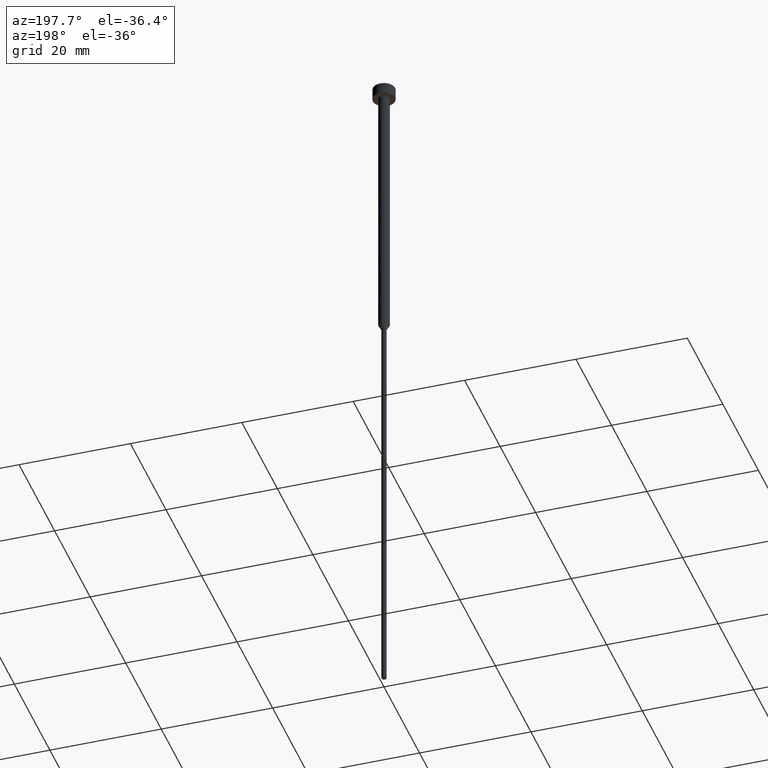
[diagram: clean part render]
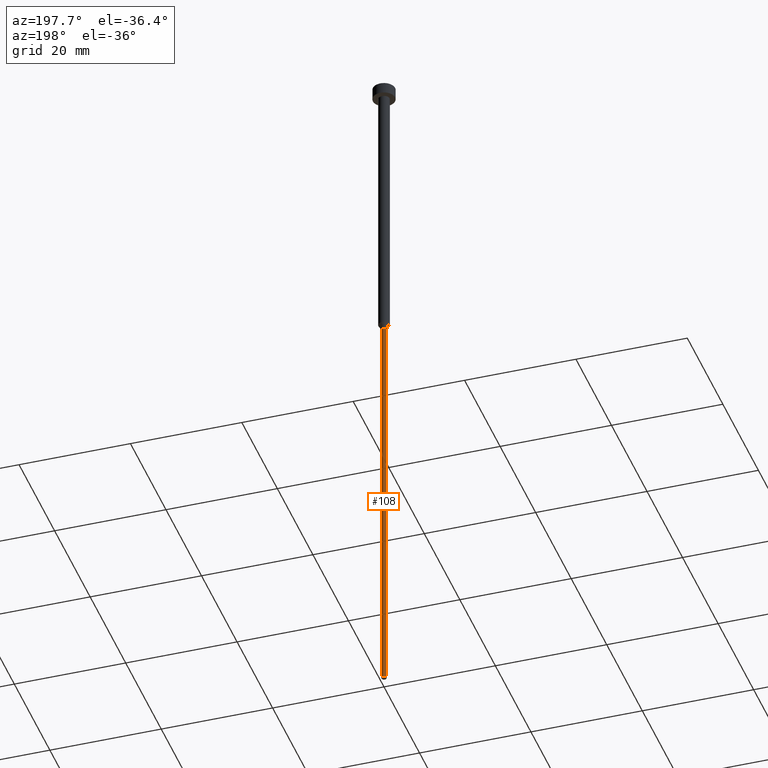
[diagram: same view with one face highlighted and labeled with its STEP entity id]
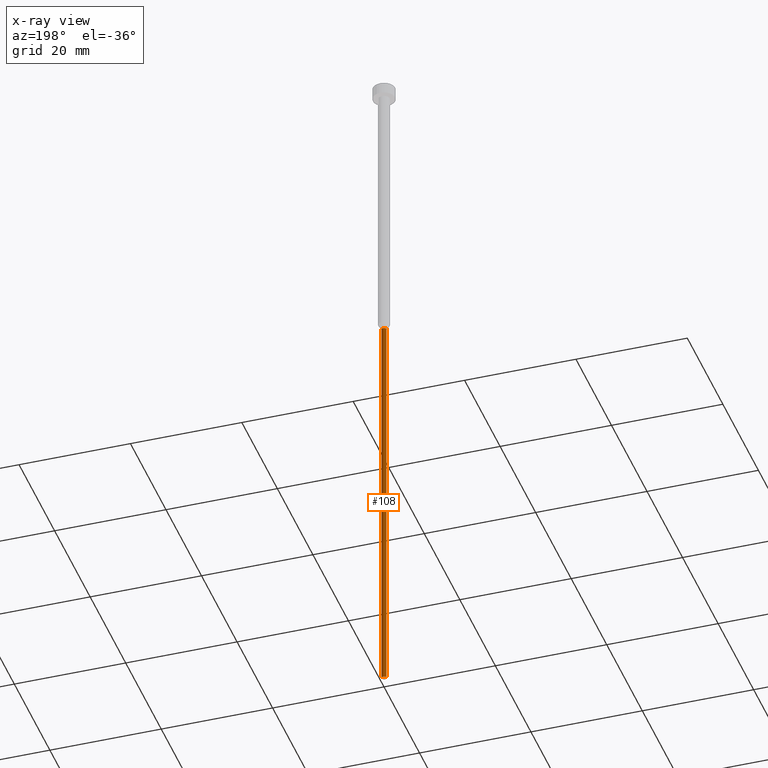
[diagram: x-ray of the same camera — body ghosted, the highlighted face saturated]
A machine part, auxiliary view. The second image highlights one B-rep face of the part: STEP entity #108.
The next image is the same camera in x-ray: the body ghosted, the highlighted face saturated — about 0% of this face is hidden behind the body in this view.
In plain terms, the highlighted cylindrical surface (edge-blend (fillet) strip) has radius 0.45 mm, axis along (-0, -0, 1).
Its self-contained STEP definition (entity closure, byte-faithful):
#9 = DIRECTION ( 'NONE',  ( -0.000000000000000000, -0.000000000000000000, 1.000000000000000000 ) ) ;
#18 = EDGE_CURVE ( 'NONE', #39, #237, #318, .T. ) ;
#39 = VERTEX_POINT ( 'NONE', #233 ) ;
#40 = LINE ( 'NONE', #250, #281 ) ;
#47 = ORIENTED_EDGE ( 'NONE', *, *, #331, .T. ) ;
#51 = VERTEX_POINT ( 'NONE', #128 ) ;
#54 = FACE_OUTER_BOUND ( 'NONE', #78, .T. ) ;
#78 = EDGE_LOOP ( 'NONE', ( #253, #47, #309, #293 ) ) ;
#96 = VERTEX_POINT ( 'NONE', #352 ) ;
#101 = VECTOR ( 'NONE', #197, 1000.000000000000000 ) ;
#107 = DIRECTION ( 'NONE',  ( 1.000000000000000000, 0.000000000000000000, 0.000000000000000000 ) ) ;
#108 = ADVANCED_FACE ( 'NONE', ( #54 ), #191, .T. ) ;
#113 = CARTESIAN_POINT ( 'NONE',  ( 0.000000000000000000, 0.000000000000000000, -50.95262794416288443 ) ) ;
#128 = CARTESIAN_POINT ( 'NONE',  ( 0.4500000000000000111, 0.000000000000000000, -50.95262794416288443 ) ) ;
#136 = CARTESIAN_POINT ( 'NONE',  ( 0.000000000000000000, 0.000000000000000000, -125.0000000000000000 ) ) ;
#143 = DIRECTION ( 'NONE',  ( -0.000000000000000000, -0.000000000000000000, 1.000000000000000000 ) ) ;
#144 = CARTESIAN_POINT ( 'NONE',  ( 0.000000000000000000, 0.000000000000000000, 0.000000000000000000 ) ) ;
#150 = AXIS2_PLACEMENT_3D ( 'NONE', #136, #235, #210 ) ;
#169 = CARTESIAN_POINT ( 'NONE',  ( -0.4500000000000000111, 5.510910596163088939E-17, -125.0000000000000000 ) ) ;
#191 = CYLINDRICAL_SURFACE ( 'NONE', #303, 0.4500000000000000111 ) ;
#197 = DIRECTION ( 'NONE',  ( -0.000000000000000000, -0.000000000000000000, 1.000000000000000000 ) ) ;
#210 = DIRECTION ( 'NONE',  ( 1.000000000000000000, 0.000000000000000000, 0.000000000000000000 ) ) ;
#218 = DIRECTION ( 'NONE',  ( -0.000000000000000000, -0.000000000000000000, 1.000000000000000000 ) ) ;
#226 = EDGE_CURVE ( 'NONE', #51, #96, #267, .T. ) ;
#233 = CARTESIAN_POINT ( 'NONE',  ( 0.4500000000000000111, 0.000000000000000000, -125.0000000000000000 ) ) ;
#235 = DIRECTION ( 'NONE',  ( -0.000000000000000000, -0.000000000000000000, 1.000000000000000000 ) ) ;
#237 = VERTEX_POINT ( 'NONE', #169 ) ;
#241 = DIRECTION ( 'NONE',  ( 1.000000000000000000, 0.000000000000000000, 0.000000000000000000 ) ) ;
#250 = CARTESIAN_POINT ( 'NONE',  ( -0.4500000000000000111, 5.510910596163088939E-17, 0.000000000000000000 ) ) ;
#253 = ORIENTED_EDGE ( 'NONE', *, *, #18, .T. ) ;
#267 = CIRCLE ( 'NONE', #323, 0.4500000000000000111 ) ;
#276 = LINE ( 'NONE', #344, #101 ) ;
#281 = VECTOR ( 'NONE', #9, 1000.000000000000000 ) ;
#293 = ORIENTED_EDGE ( 'NONE', *, *, #313, .F. ) ;
#303 = AXIS2_PLACEMENT_3D ( 'NONE', #144, #143, #241 ) ;
#309 = ORIENTED_EDGE ( 'NONE', *, *, #226, .F. ) ;
#313 = EDGE_CURVE ( 'NONE', #39, #51, #276, .T. ) ;
#318 = CIRCLE ( 'NONE', #150, 0.4500000000000000111 ) ;
#323 = AXIS2_PLACEMENT_3D ( 'NONE', #113, #218, #107 ) ;
#331 = EDGE_CURVE ( 'NONE', #237, #96, #40, .T. ) ;
#344 = CARTESIAN_POINT ( 'NONE',  ( 0.4500000000000000111, 0.000000000000000000, 0.000000000000000000 ) ) ;
#352 = CARTESIAN_POINT ( 'NONE',  ( -0.4500000000000000111, 5.510910596163088939E-17, -50.95262794416288443 ) ) ;